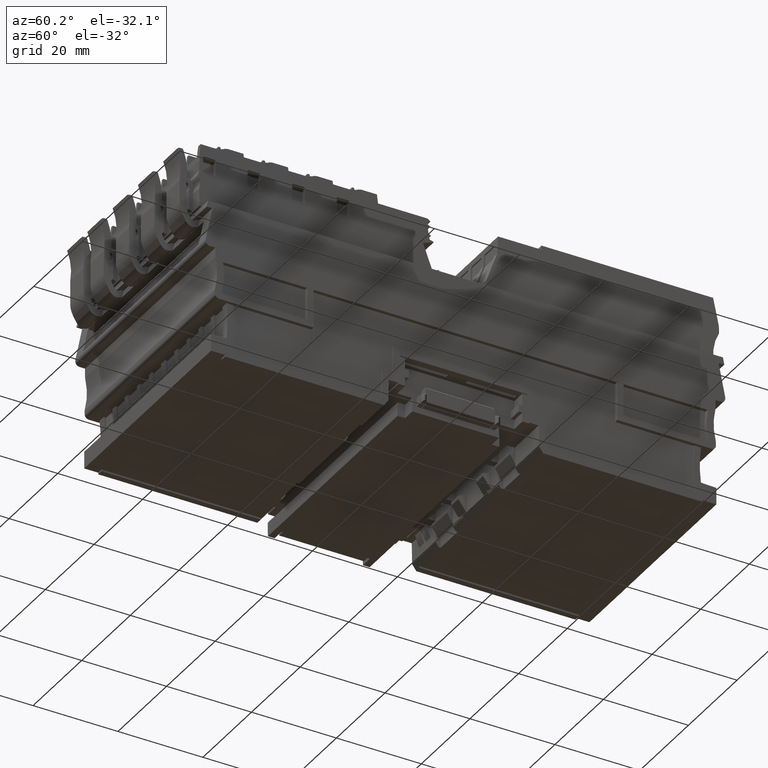
[diagram: clean part render]
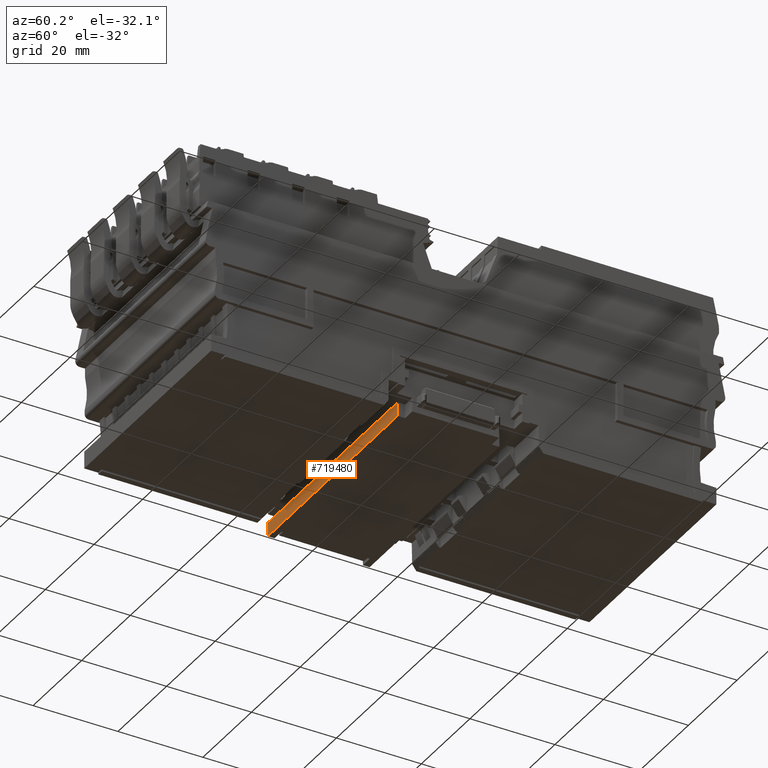
[diagram: same view with one face highlighted and labeled with its STEP entity id]
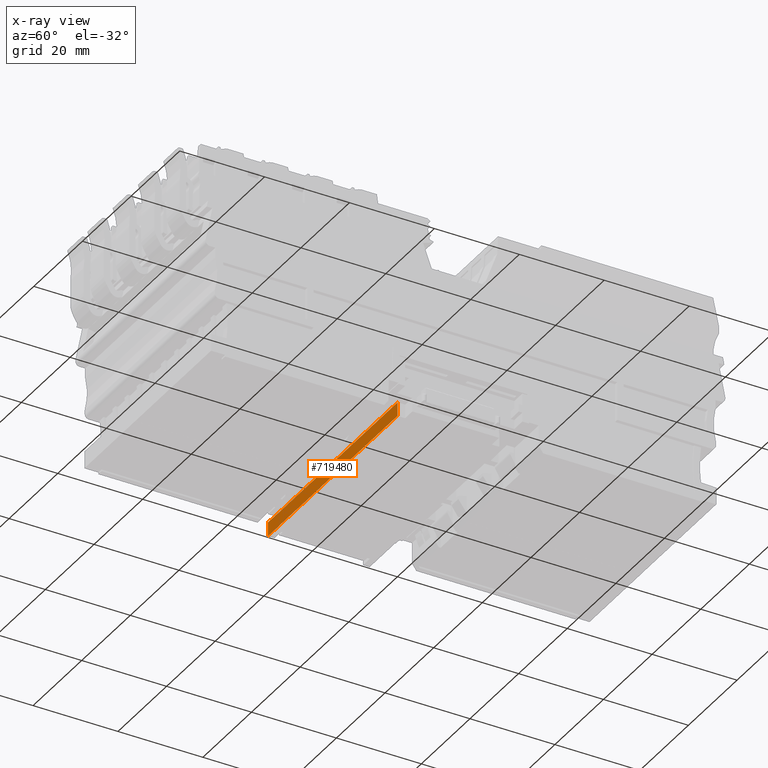
[diagram: x-ray of the same camera — body ghosted, the highlighted face saturated]
A machine part, auxiliary view. The second image highlights one B-rep face of the part: STEP entity #719480.
The next image is the same camera in x-ray: the body ghosted, the highlighted face saturated — about 0% of this face is hidden behind the body in this view.
In plain terms, the highlighted planar face has unit normal (-0, -1, -0).
Its self-contained STEP definition (entity closure, byte-faithful):
#678560=CARTESIAN_POINT('',(11.981776895064,-7.00000000000454,
42.3423982857638));
#678570=VERTEX_POINT('',#678560);
#678720=CARTESIAN_POINT('',(11.9817768950635,-3.69999999998206,
42.4000000000273));
#678730=VERTEX_POINT('',#678720);
#678760=CARTESIAN_POINT('',(11.9817768950626,2.24070364158749,
42.5036953678102));
#678770=DIRECTION('',(-1.52579338053016E-13,0.999847695156391,
0.0174524064372838));
#678780=VECTOR('',#678770,1.);
#678790=LINE('',#678760,#678780);
#678800=EDGE_CURVE('',#678570,#678730,#678790,.T.);
#683210=CARTESIAN_POINT('',(11.9817768950511,-3.75000000009732,
39.5000000000273));
#683220=VERTEX_POINT('',#683210);
#683250=CARTESIAN_POINT('',(11.9817768950498,2.24158102339288,
39.5000000000285));
#683260=DIRECTION('',(2.27373675443232E-13,-1.,-1.96898854734841E-13));
#683270=VECTOR('',#683260,1.);
#683280=LINE('',#683250,#683270);
#683290=CARTESIAN_POINT('',(11.9817768950511,-3.69999999998206,
39.5000000000273));
#683300=VERTEX_POINT('',#683290);
#683310=EDGE_CURVE('',#683300,#683220,#683280,.T.);
#717000=CARTESIAN_POINT('',(11.9817768948947,-7.00000000000452,
2.79999999999967));
#717010=DIRECTION('',(-4.28367324133341E-12,2.4809452808255E-16,-1.));
#717020=VECTOR('',#717010,1.);
#717030=LINE('',#717000,#717020);
#717040=CARTESIAN_POINT('',(11.9817768948355,-7.00000000000452,
-11.0056969652082));
#717050=VERTEX_POINT('',#717040);
#717060=EDGE_CURVE('',#678570,#717050,#717030,.T.);
#718570=CARTESIAN_POINT('',(11.9817768948939,-3.69999999998205,
2.79999999999967));
#718580=DIRECTION('',(-4.28367324133341E-12,2.48094525269409E-16,-1.));
#718590=VECTOR('',#718580,1.);
#718600=LINE('',#718570,#718590);
#718610=EDGE_CURVE('',#678730,#683300,#718600,.T.);
#719230=CARTESIAN_POINT('',(11.9817768948226,-3.58643944885513,
-13.8285355633944));
#719240=DIRECTION('',(1.,2.27373675451024E-13,-4.28367324133341E-12));
#719250=DIRECTION('',(-2.27373675443231E-13,1.,1.81927693653884E-12));
#719260=AXIS2_PLACEMENT_3D('',#719230,#719240,#719250);
#719270=PLANE('',#719260);
#719280=ORIENTED_EDGE('',*,*,#717060,.T.);
#719290=ORIENTED_EDGE('',*,*,#678800,.F.);
#719300=ORIENTED_EDGE('',*,*,#718610,.F.);
#719310=ORIENTED_EDGE('',*,*,#683310,.F.);
#719320=CARTESIAN_POINT('',(11.9817768948941,-3.75000000009731,
2.79999999999967));
#719330=DIRECTION('',(4.28367324133341E-12,-2.48094533216886E-16,1.));
#719340=VECTOR('',#719330,1.);
#719350=LINE('',#719320,#719340);
#719360=CARTESIAN_POINT('',(11.9817768948345,-3.75000000009731,
-11.0624259262233));
#719370=VERTEX_POINT('',#719360);
#719380=EDGE_CURVE('',#719370,#683220,#719350,.T.);
#719390=ORIENTED_EDGE('',*,*,#719380,.T.);
#719400=CARTESIAN_POINT('',(11.9817768948327,2.2407036415875,
-11.1669940472547));
#719410=DIRECTION('',(3.02098623894409E-13,-0.999847695156391,
0.0174524064372836));
#719420=VECTOR('',#719410,1.);
#719430=LINE('',#719400,#719420);
#719440=EDGE_CURVE('',#719370,#717050,#719430,.T.);
#719450=ORIENTED_EDGE('',*,*,#719440,.F.);
#719460=EDGE_LOOP('',(#719450,#719390,#719310,#719300,#719290,#719280));
#719470=FACE_OUTER_BOUND('',#719460,.T.);
#719480=ADVANCED_FACE('',(#719470),#719270,.T.);